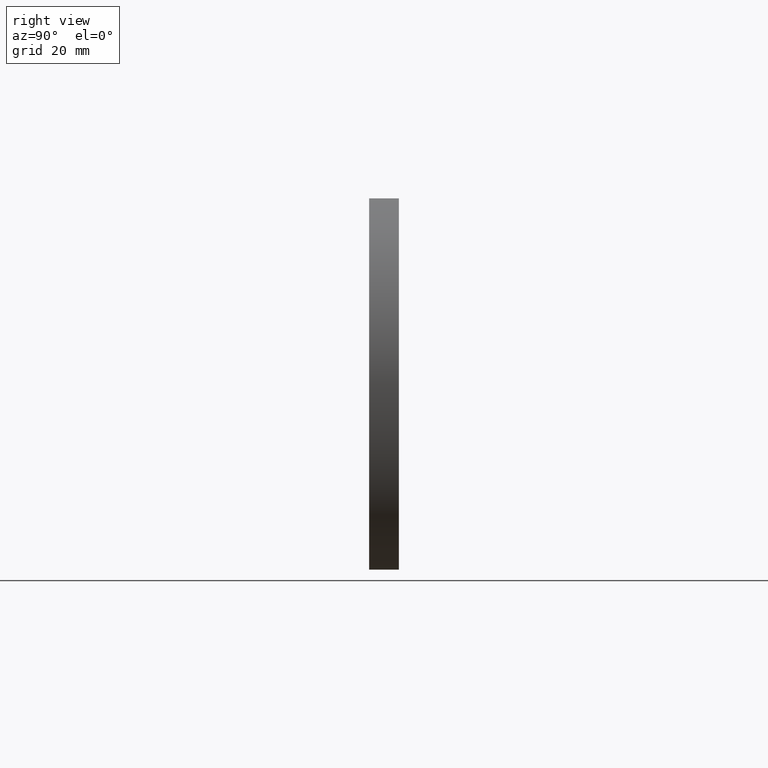
[diagram: clean part render]
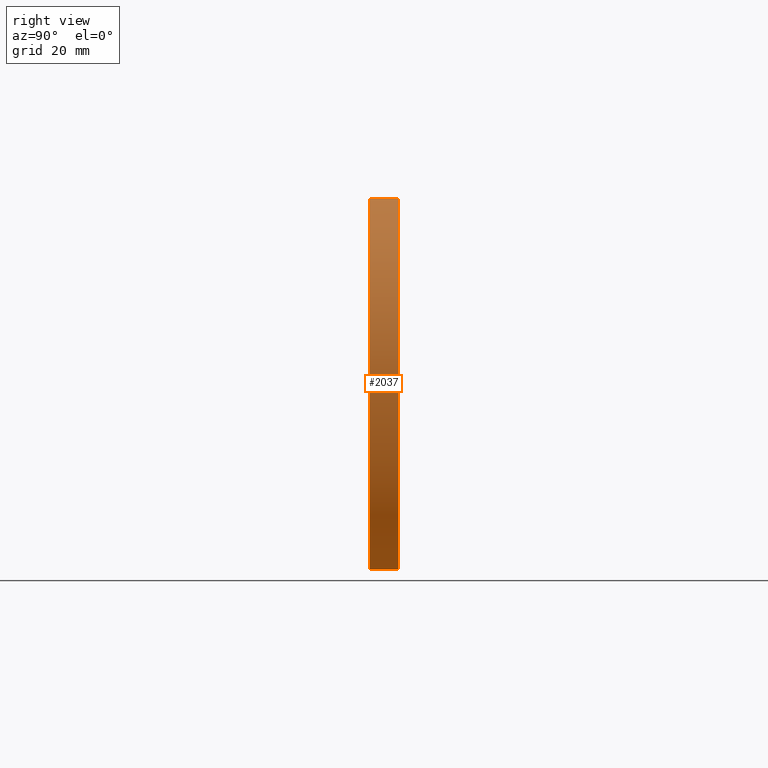
[diagram: same view with one face highlighted and labeled with its STEP entity id]
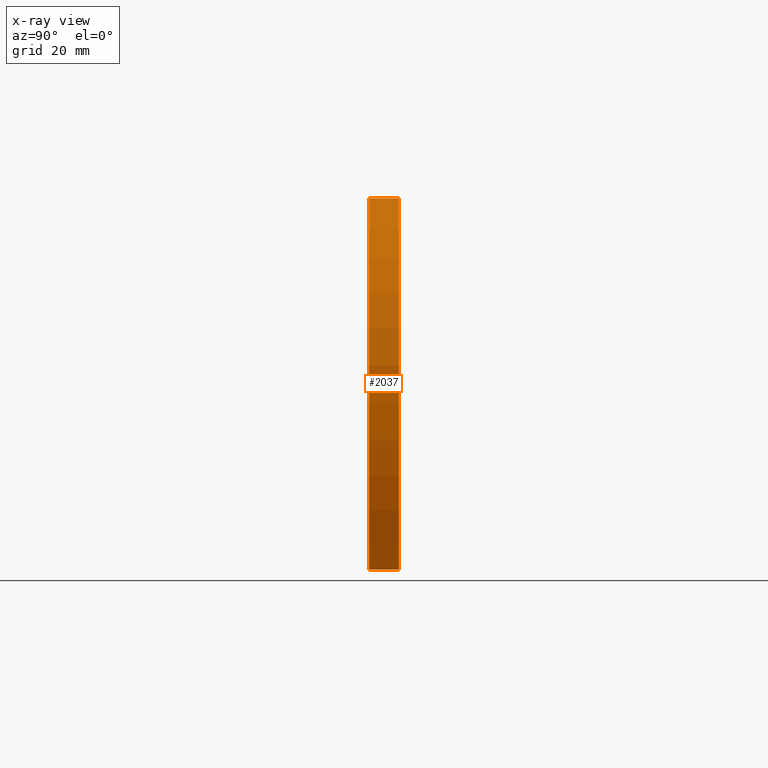
[diagram: x-ray of the same camera — body ghosted, the highlighted face saturated]
A machine part, right view. The second image highlights one B-rep face of the part: STEP entity #2037.
The next image is the same camera in x-ray: the body ghosted, the highlighted face saturated — about 0% of this face is hidden behind the body in this view.
In plain terms, the highlighted cylindrical surface (partial cylindrical patch) has radius 68.8895 mm, axis along (-0, -1, -0).
Its self-contained STEP definition (entity closure, byte-faithful):
#234 = CIRCLE ( 'NONE', #5785, 68.88953488372092700 ) ;
#520 = CYLINDRICAL_SURFACE ( 'NONE', #2913, 68.88953488372092700 ) ;
#722 = ORIENTED_EDGE ( 'NONE', *, *, #3742, .F. ) ;
#858 = DIRECTION ( 'NONE',  ( 0.0000000000000000000, 1.000000000000000000, -0.0000000000000000000 ) ) ;
#1056 = AXIS2_PLACEMENT_3D ( 'NONE', #11053, #858, #9443 ) ;
#1134 = DIRECTION ( 'NONE',  ( -0.0000000000000000000, -1.000000000000000000, -0.0000000000000000000 ) ) ;
#1139 = ORIENTED_EDGE ( 'NONE', *, *, #9584, .T. ) ;
#1498 = CARTESIAN_POINT ( 'NONE',  ( 63.49999999999998600, 0.0000000000000000000, 50.00000000000001400 ) ) ;
#1616 = DIRECTION ( 'NONE',  ( 0.0000000000000000000, 0.0000000000000000000, -1.000000000000000000 ) ) ;
#1670 = DIRECTION ( 'NONE',  ( -0.0000000000000000000, -1.000000000000000000, -0.0000000000000000000 ) ) ;
#2037 = ADVANCED_FACE ( 'NONE', ( #4561 ), #520, .T. ) ;
#2190 = VERTEX_POINT ( 'NONE', #8110 ) ;
#2243 = LINE ( 'NONE', #2536, #7698 ) ;
#2448 = CIRCLE ( 'NONE', #1056, 68.88953488372092700 ) ;
#2536 = CARTESIAN_POINT ( 'NONE',  ( 63.50000000000002800, 8.000000000000000000, -49.99999999999997200 ) ) ;
#2913 = AXIS2_PLACEMENT_3D ( 'NONE', #8052, #1134, #10544 ) ;
#3156 = VECTOR ( 'NONE', #4125, 1000.000000000000000 ) ;
#3195 = VERTEX_POINT ( 'NONE', #7047 ) ;
#3742 = EDGE_CURVE ( 'NONE', #3195, #2190, #2243, .T. ) ;
#4125 = DIRECTION ( 'NONE',  ( -0.0000000000000000000, -1.000000000000000000, -0.0000000000000000000 ) ) ;
#4561 = FACE_OUTER_BOUND ( 'NONE', #6661, .T. ) ;
#4660 = EDGE_CURVE ( 'NONE', #8723, #3195, #2448, .T. ) ;
#5409 = LINE ( 'NONE', #7565, #3156 ) ;
#5785 = AXIS2_PLACEMENT_3D ( 'NONE', #9303, #8540, #1616 ) ;
#6661 = EDGE_LOOP ( 'NONE', ( #7443, #722, #8480, #1139 ) ) ;
#6888 = EDGE_CURVE ( 'NONE', #9062, #2190, #234, .T. ) ;
#7047 = CARTESIAN_POINT ( 'NONE',  ( 63.50000000000002800, 8.000000000000000000, -49.99999999999997200 ) ) ;
#7443 = ORIENTED_EDGE ( 'NONE', *, *, #6888, .T. ) ;
#7565 = CARTESIAN_POINT ( 'NONE',  ( 63.49999999999998600, 8.000000000000000000, 50.00000000000001400 ) ) ;
#7698 = VECTOR ( 'NONE', #1670, 1000.000000000000000 ) ;
#8052 = CARTESIAN_POINT ( 'NONE',  ( 16.11046511627908000, 8.000000000000000000, -3.469446951953614200E-015 ) ) ;
#8110 = CARTESIAN_POINT ( 'NONE',  ( 63.50000000000002800, 0.0000000000000000000, -49.99999999999997200 ) ) ;
#8480 = ORIENTED_EDGE ( 'NONE', *, *, #4660, .F. ) ;
#8540 = DIRECTION ( 'NONE',  ( 0.0000000000000000000, 1.000000000000000000, -0.0000000000000000000 ) ) ;
#8723 = VERTEX_POINT ( 'NONE', #10405 ) ;
#9062 = VERTEX_POINT ( 'NONE', #1498 ) ;
#9303 = CARTESIAN_POINT ( 'NONE',  ( 16.11046511627908000, 0.0000000000000000000, -3.469446951953614200E-015 ) ) ;
#9443 = DIRECTION ( 'NONE',  ( 0.0000000000000000000, 0.0000000000000000000, -1.000000000000000000 ) ) ;
#9584 = EDGE_CURVE ( 'NONE', #8723, #9062, #5409, .T. ) ;
#10405 = CARTESIAN_POINT ( 'NONE',  ( 63.49999999999998600, 8.000000000000000000, 50.00000000000001400 ) ) ;
#10544 = DIRECTION ( 'NONE',  ( 0.0000000000000000000, 0.0000000000000000000, -1.000000000000000000 ) ) ;
#11053 = CARTESIAN_POINT ( 'NONE',  ( 16.11046511627908000, 8.000000000000000000, -3.469446951953614200E-015 ) ) ;